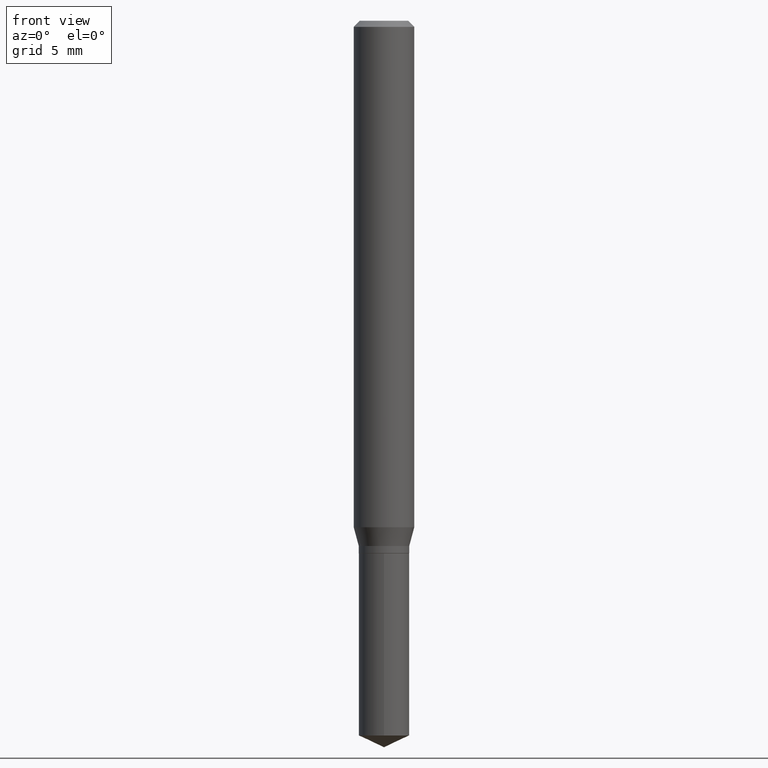
[diagram: clean part render]
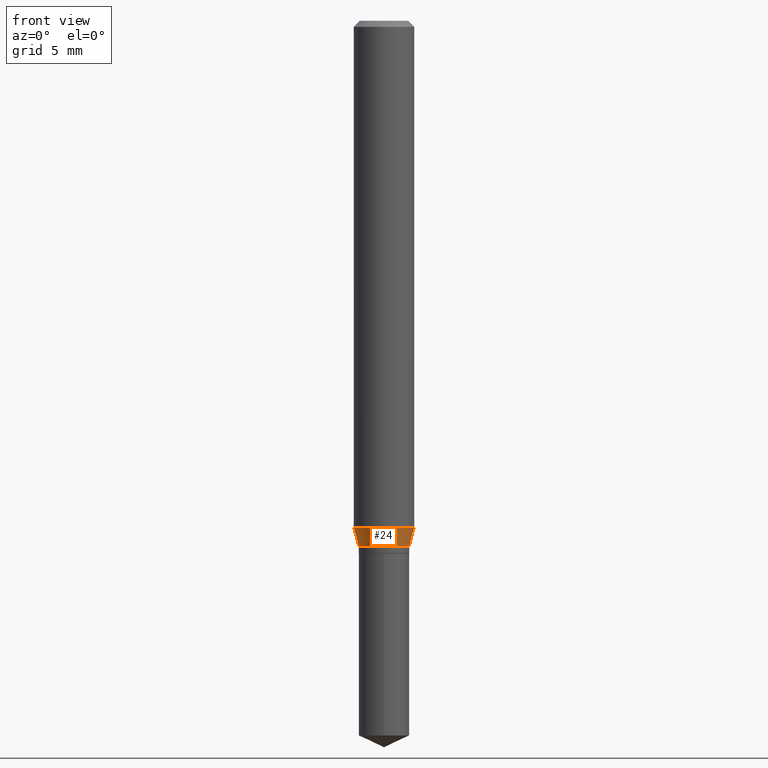
[diagram: same view with one face highlighted and labeled with its STEP entity id]
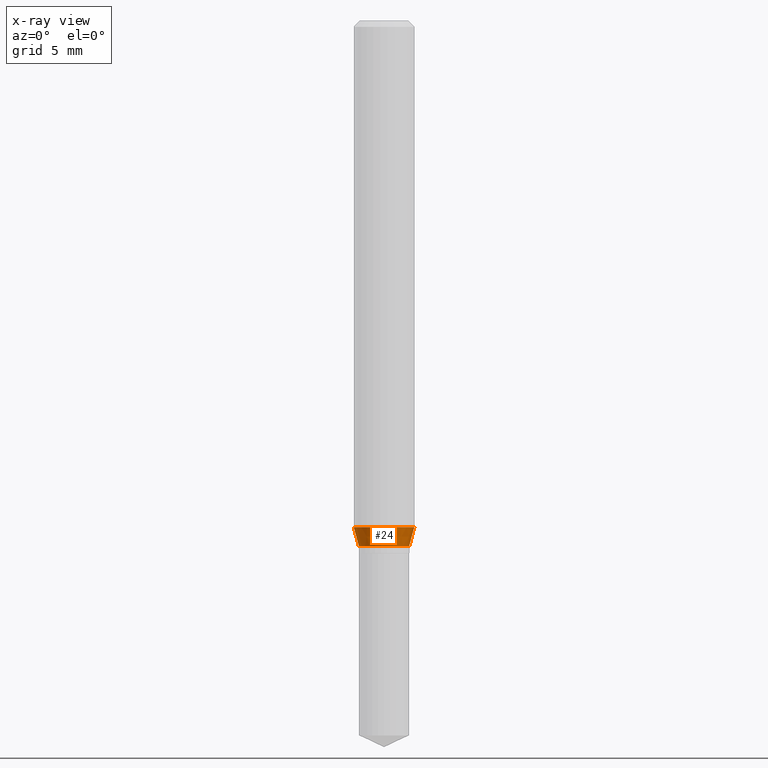
[diagram: x-ray of the same camera — body ghosted, the highlighted face saturated]
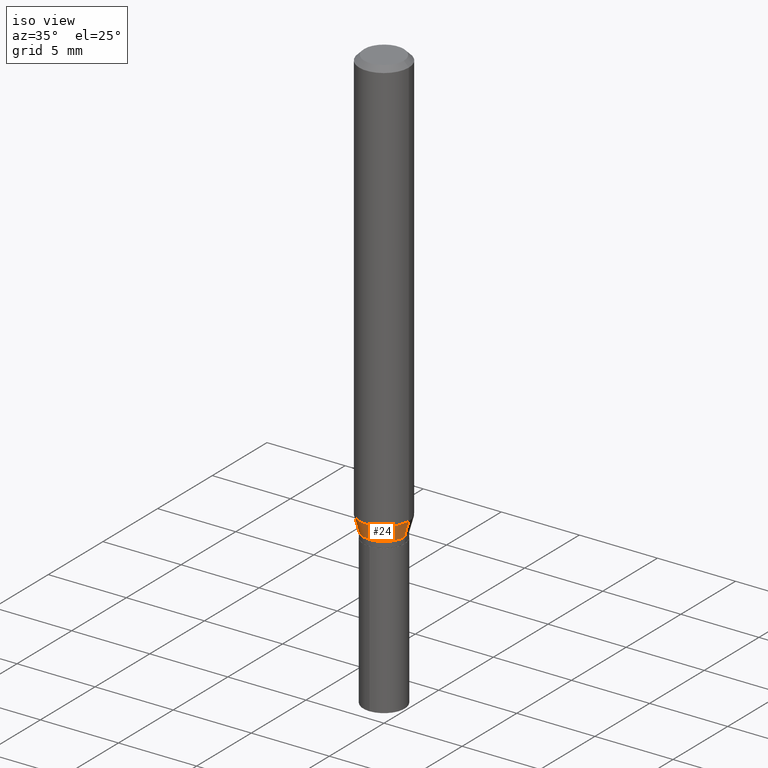
[diagram: same view with one face highlighted and labeled with its STEP entity id]
A machine part, front view. The second image highlights one B-rep face of the part: STEP entity #24.
The next image is the same camera in x-ray: the body ghosted, the highlighted face saturated — about 0% of this face is hidden behind the body in this view.
A second angle (iso view) of the same face is appended — the face is thin or edge-on in the first view.
In plain terms, the highlighted conical surface has half-angle 15 deg.
Its self-contained STEP definition (entity closure, byte-faithful):
#2 = ORIENTED_EDGE ( 'NONE', *, *, #466, .T. ) ;
#20 = CARTESIAN_POINT ( 'NONE',  ( 2.651866373427162025E-29, -3.786162363841507612E-15, -1.084400000000000031 ) ) ;
#24 = ADVANCED_FACE ( 'NONE', ( #315 ), #400, .T. ) ;
#73 = CARTESIAN_POINT ( 'NONE',  ( -0.05215000000000000191, -3.415614327142614760E-15, -1.084400000000000031 ) ) ;
#82 = VECTOR ( 'NONE', #191, 39.37007874015748143 ) ;
#90 = DIRECTION ( 'NONE',  ( -2.445468806185136597E-29, 3.491481338843145583E-15, 1.000000000000000000 ) ) ;
#94 = DIRECTION ( 'NONE',  ( 0.2588190451025216277, 1.565188264969619995E-15, 0.9659258262890679791 ) ) ;
#108 = EDGE_CURVE ( 'NONE', #231, #420, #217, .T. ) ;
#121 = VERTEX_POINT ( 'NONE', #406 ) ;
#134 = CARTESIAN_POINT ( 'NONE',  ( 2.557405920255531666E-29, -3.651297871326509428E-15, -1.045773274141661879 ) ) ;
#145 = AXIS2_PLACEMENT_3D ( 'NONE', #432, #90, #394 ) ;
#161 = ORIENTED_EDGE ( 'NONE', *, *, #108, .F. ) ;
#170 = DIRECTION ( 'NONE',  ( -2.445468806185136597E-29, 3.491481338843145583E-15, 1.000000000000000000 ) ) ;
#175 = CARTESIAN_POINT ( 'NONE',  ( 0.05215000000000000191, -4.150323867482845879E-15, -1.084400000000000031 ) ) ;
#191 = DIRECTION ( 'NONE',  ( -0.2588190451025216277, 5.211531920934551831E-15, 0.9659258262890679791 ) ) ;
#204 = CARTESIAN_POINT ( 'NONE',  ( -0.06250000000000012490, -3.207208661476446023E-15, -1.045773274141661879 ) ) ;
#217 = LINE ( 'NONE', #73, #82 ) ;
#231 = VERTEX_POINT ( 'NONE', #411 ) ;
#247 = VECTOR ( 'NONE', #94, 39.37007874015748143 ) ;
#275 = CARTESIAN_POINT ( 'NONE',  ( 0.05215000000000000191, -4.150323867482845879E-15, -1.084400000000000031 ) ) ;
#283 = DIRECTION ( 'NONE',  ( -2.445468806185136597E-29, 3.491481338843145583E-15, 1.000000000000000000 ) ) ;
#315 = FACE_OUTER_BOUND ( 'NONE', #358, .T. ) ;
#330 = AXIS2_PLACEMENT_3D ( 'NONE', #20, #170, #431 ) ;
#356 = ORIENTED_EDGE ( 'NONE', *, *, #459, .T. ) ;
#358 = EDGE_LOOP ( 'NONE', ( #161, #356, #2, #388 ) ) ;
#362 = CIRCLE ( 'NONE', #391, 0.06250000000000012490 ) ;
#363 = DIRECTION ( 'NONE',  ( 1.000000000000000000, -6.982962677686264344E-15, 0.000000000000000000 ) ) ;
#388 = ORIENTED_EDGE ( 'NONE', *, *, #450, .F. ) ;
#391 = AXIS2_PLACEMENT_3D ( 'NONE', #134, #283, #363 ) ;
#394 = DIRECTION ( 'NONE',  ( 1.000000000000000000, -6.982962677686268288E-15, 0.000000000000000000 ) ) ;
#400 = CONICAL_SURFACE ( 'NONE', #145, 0.05215000000000000191, 0.2617993877991502960 ) ;
#406 = CARTESIAN_POINT ( 'NONE',  ( 0.06250000000000012490, -4.087733038681901886E-15, -1.045773274141661879 ) ) ;
#411 = CARTESIAN_POINT ( 'NONE',  ( -0.05215000000000000191, -3.441975011250880253E-15, -1.084400000000000031 ) ) ;
#420 = VERTEX_POINT ( 'NONE', #204 ) ;
#431 = DIRECTION ( 'NONE',  ( 1.000000000000000000, -6.982962677686268288E-15, 0.000000000000000000 ) ) ;
#432 = CARTESIAN_POINT ( 'NONE',  ( 2.651866373427162025E-29, -3.786162363841507612E-15, -1.084400000000000031 ) ) ;
#450 = EDGE_CURVE ( 'NONE', #420, #121, #362, .T. ) ;
#459 = EDGE_CURVE ( 'NONE', #231, #467, #464, .T. ) ;
#460 = LINE ( 'NONE', #175, #247 ) ;
#464 = CIRCLE ( 'NONE', #330, 0.05215000000000000191 ) ;
#466 = EDGE_CURVE ( 'NONE', #467, #121, #460, .T. ) ;
#467 = VERTEX_POINT ( 'NONE', #275 ) ;